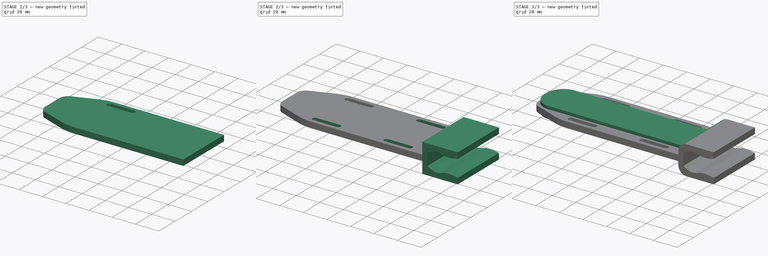
[diagram: build sequence overview — one tinted view per stage of 3, left to right]
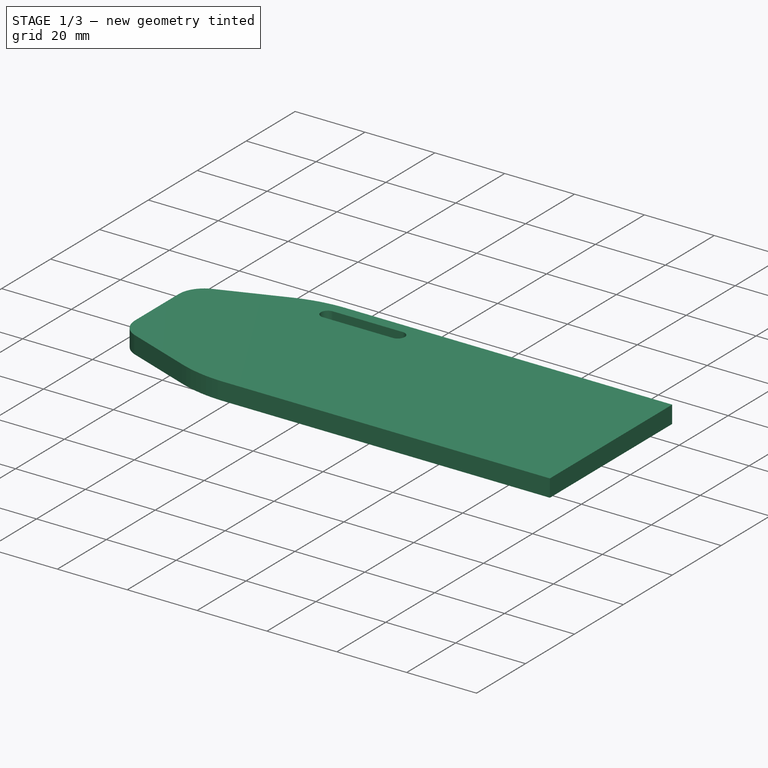
[diagram: stage 1 of 3 — iso view after this stage's code; geometry added in this stage tinted green]
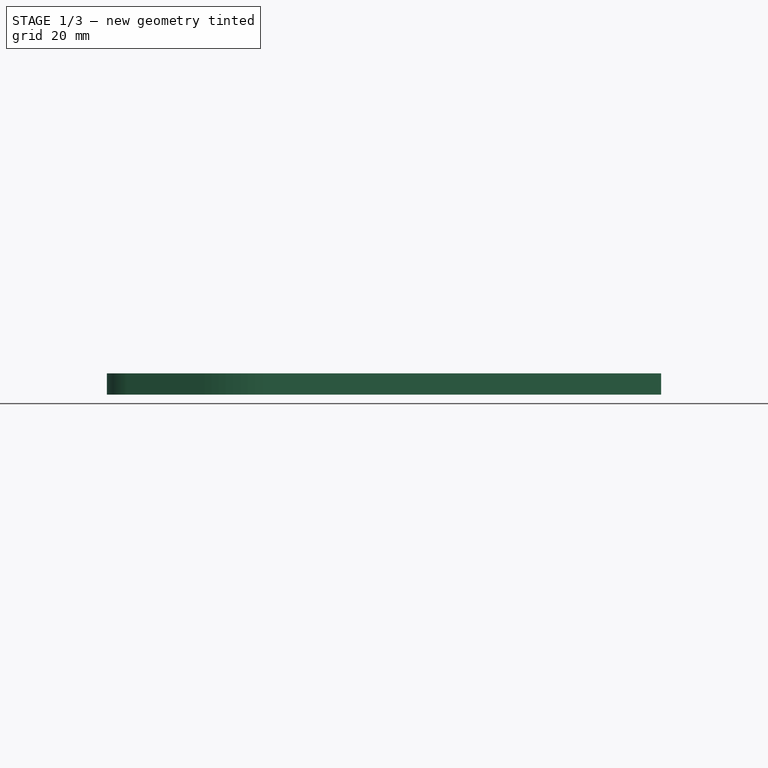
[diagram: stage 1 of 3 — front view after this stage's code; geometry added in this stage tinted green]
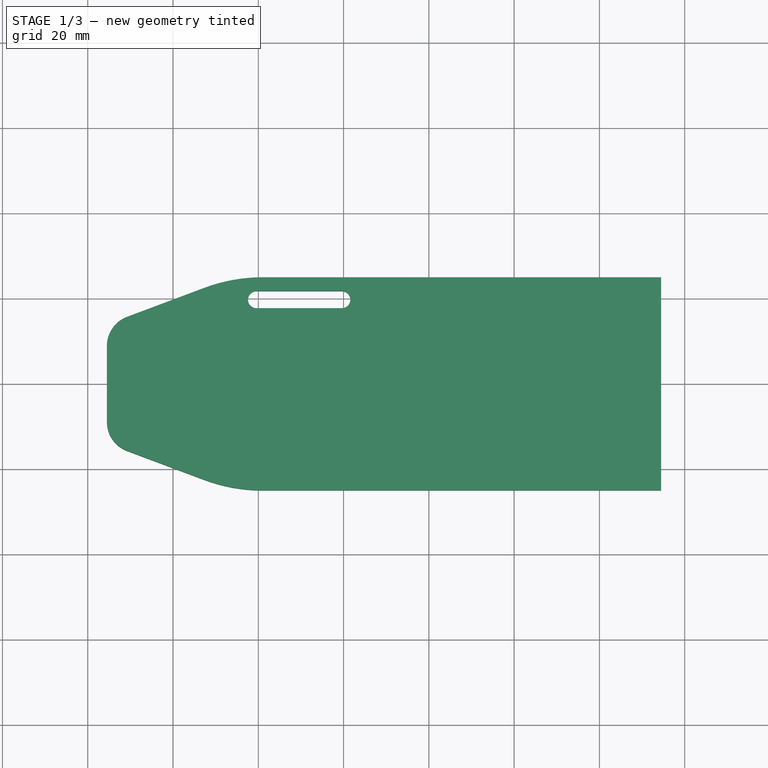
[diagram: stage 1 of 3 — top view after this stage's code; geometry added in this stage tinted green]
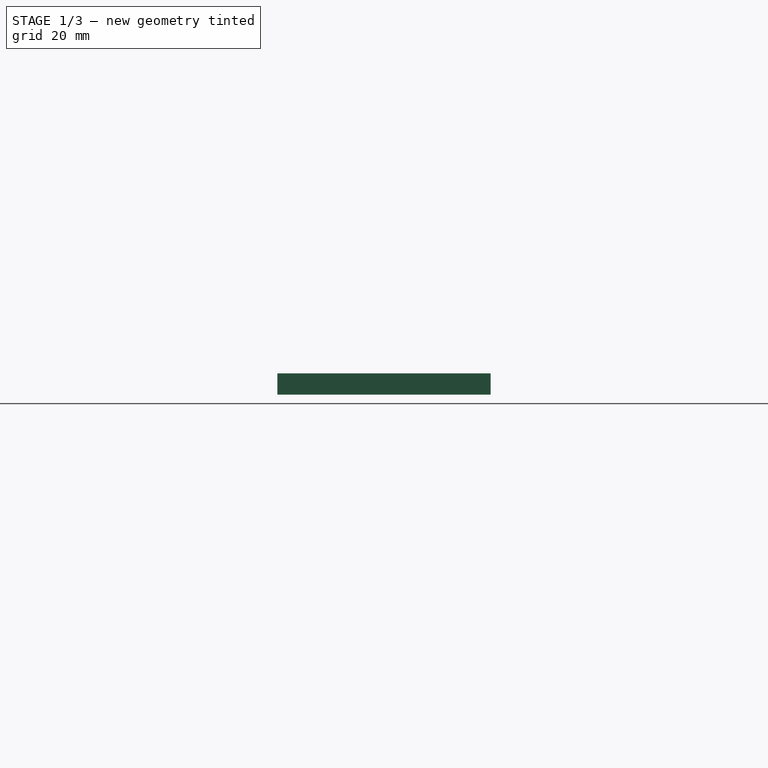
[diagram: stage 1 of 3 — right view after this stage's code; geometry added in this stage tinted green]
FCSTD DOCUMENT  (FreeCAD 0.21R33668 +26 (Git))
Label: Dutka
License: All rights reserved
LicenseURL: http://en.wikipedia.org/wiki/All_rights_reserved
objects: Sketcher::SketchObject×6, PartDesign::Pad×3, PartDesign::Pocket×2, PartDesign::Mirrored×2, PartDesign::MultiTransform×1, PartDesign::Fillet×1, PartDesign::Body×1
note: 22 computed .brp shape members not serialized (recipe doc carries the construction recipe); baked Part::Feature solids carry a one-line shape summary decoded from their .brp

FEATURE [Sketcher::SketchObject] Sketch  label="чохол"
  FullyConstrained = false
  MapMode = 5
  Support = -> [XY_Plane]
  sketch-geometry (14):
    g0: LineSegment StartX=-70.7611 StartY=15.7321 StartZ=0 EndX=-52.6371 EndY=22.5287 EndZ=0
    g1: LineSegment StartX=-39.0087 StartY=25 StartZ=0 EndX=54.4793 EndY=25 EndZ=0
    g2: LineSegment StartX=54.4793 StartY=25 StartZ=0 EndX=54.4793 EndY=-25 EndZ=0
    g3: LineSegment StartX=54.4793 StartY=-25 StartZ=0 EndX=-39.0087 EndY=-25 EndZ=0
    g4: LineSegment StartX=-52.6371 StartY=-22.5287 StartZ=0 EndX=-70.7611 EndY=-15.7321 EndZ=0
    g5: LineSegment StartX=-75.5207 StartY=-8.864 StartZ=0 EndX=-75.5207 EndY=8.864 EndZ=0
    g6: ArcOfCircle CenterX=-39.0087 CenterY=-13.8132 CenterZ=0 NormalX=0 NormalY=0 NormalZ=1 AngleXU=0 Radius=38.8132 StartAngle=1.5708 EndAngle=1.92957
    g7: GeomPoint X=-46.047 Y=25 Z=0
    g8: ArcOfCircle CenterX=-39.0087 CenterY=13.8132 CenterZ=0 NormalX=0 NormalY=0 NormalZ=1 AngleXU=0 Radius=38.8132 StartAngle=4.35361 EndAngle=4.71239
    g9: GeomPoint X=-46.047 Y=-25 Z=0
    g10: ArcOfCircle CenterX=-68.1856 CenterY=8.864 CenterZ=0 NormalX=0 NormalY=0 NormalZ=1 AngleXU=0 Radius=7.33513 StartAngle=1.92957 EndAngle=3.14159
    g11: GeomPoint X=-75.5207 Y=13.9472 Z=0
    g12: ArcOfCircle CenterX=-68.1856 CenterY=-8.864 CenterZ=0 NormalX=0 NormalY=0 NormalZ=1 AngleXU=0 Radius=7.33513 StartAngle=3.14159 EndAngle=4.35361
    g13: GeomPoint X=-75.5207 Y=-13.9472 Z=0
  constraints (26):
    c: Horizontal(g1)
    c: Coincident(g1,g2)
    c: Coincident(g2,g3)
    c: Symmetric(g7,g9,g-1)
    c: Symmetric(g13,g11,g-1)
    c: Symmetric(g1,g2,g-1)
    c: PointOnObject(g7,g0)
    c: PointOnObject(g7,g1)
    c: Tangent(g0,g6) = 1.5708
    c: Tangent(g1,g6) = 1.5708
    c: PointOnObject(g9,g3)
    c: PointOnObject(g9,g4)
    c: Tangent(g3,g8) = 1.5708
    c: Tangent(g4,g8) = 1.5708
    c: Equal(g6,g8)
    c: PointOnObject(g11,g0)
    c: PointOnObject(g11,g5)
    c: Tangent(g0,g10) = 1.5708
    c: Tangent(g5,g10) = 1.5708
    c: PointOnObject(g13,g4)
    c: PointOnObject(g13,g5)
    c: Tangent(g4,g12) = 1.5708
    c: Tangent(g5,g12) = 1.5708
    c: Equal(g10,g12)
    c: DistanceY(g2,g1) = 50
    c: DistanceX(g5,g1) = 130
FEATURE [PartDesign::Pad] Pad
  Direction = (0,0,1)
  Length = 5
  Length2 = 10
  Midplane = true
  Profile = -> Sketch
  ReferenceAxis = -> Sketch [N_Axis]
  Type = 0
FEATURE [Sketcher::SketchObject] Sketch001  label="вирізи"
  FullyConstrained = false
  MapMode = 5
  Placement = pos=(0,0,2.5) rot=(0,0,1;0rad)
  Support = -> [Pad]
  sketch-geometry (4):
    g0: ArcOfCircle CenterX=-40.417 CenterY=19.7548 CenterZ=0 NormalX=0 NormalY=0 NormalZ=1 AngleXU=0 Radius=2 StartAngle=1.5708 EndAngle=4.71239
    g1: ArcOfCircle CenterX=-20.417 CenterY=19.7548 CenterZ=0 NormalX=0 NormalY=0 NormalZ=1 AngleXU=0 Radius=2 StartAngle=4.71239 EndAngle=7.85398
    g2: LineSegment StartX=-40.417 StartY=17.7548 StartZ=0 EndX=-20.417 EndY=17.7548 EndZ=0
    g3: LineSegment StartX=-20.417 StartY=21.7548 StartZ=0 EndX=-40.417 EndY=21.7548 EndZ=0
  constraints (8):
    c: Tangent(g0,g2) = -1.5708
    c: Tangent(g2,g1) = -1.5708
    c: Tangent(g1,g3) = -1.5708
    c: Tangent(g3,g0) = -1.5708
    c: Equal(g0,g1)
    c: Horizontal(g2)
    c: DistanceX(g3,g3) = 20
    c: DistanceY(g1,g1) = 4
FEATURE [PartDesign::Pocket] Pocket
  BaseFeature = -> Pad
  Direction = (0,0,-1)
  Length = 5
  Length2 = 5
  Profile = -> Sketch001
  ReferenceAxis = -> Sketch001 [N_Axis]
  Type = 1
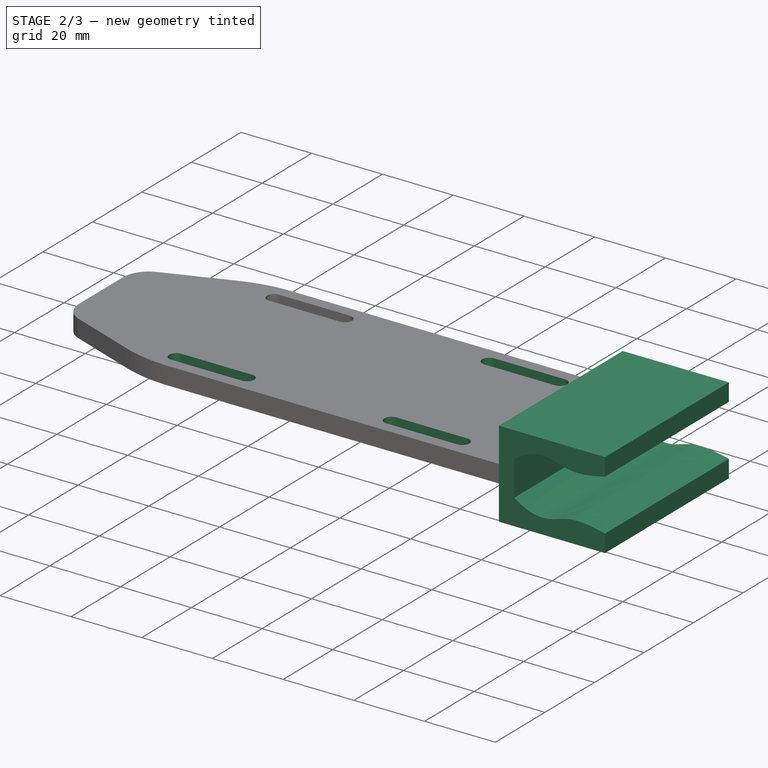
[diagram: stage 2 of 3 — iso view after this stage's code; geometry added in this stage tinted green]
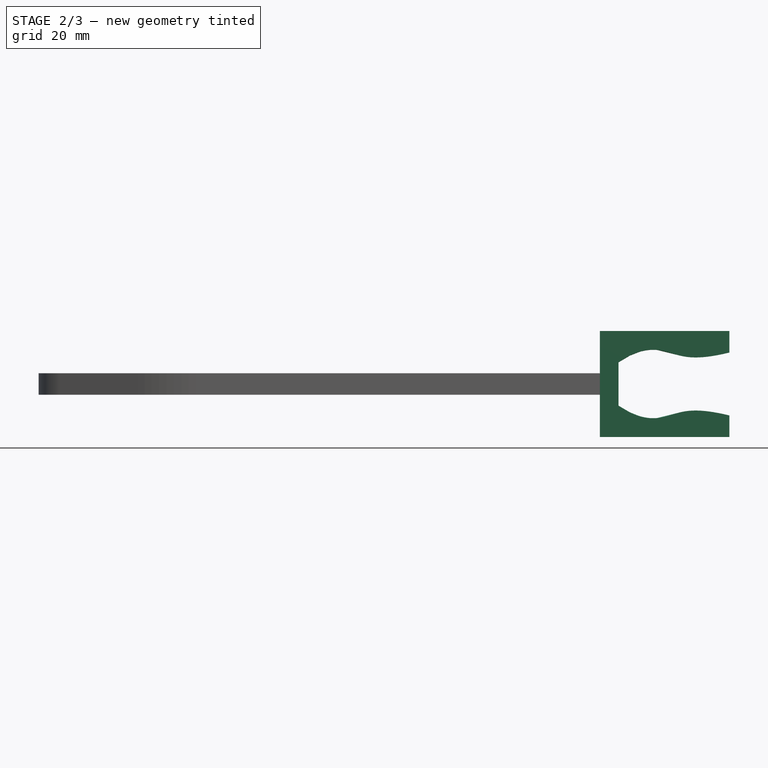
[diagram: stage 2 of 3 — front view after this stage's code; geometry added in this stage tinted green]
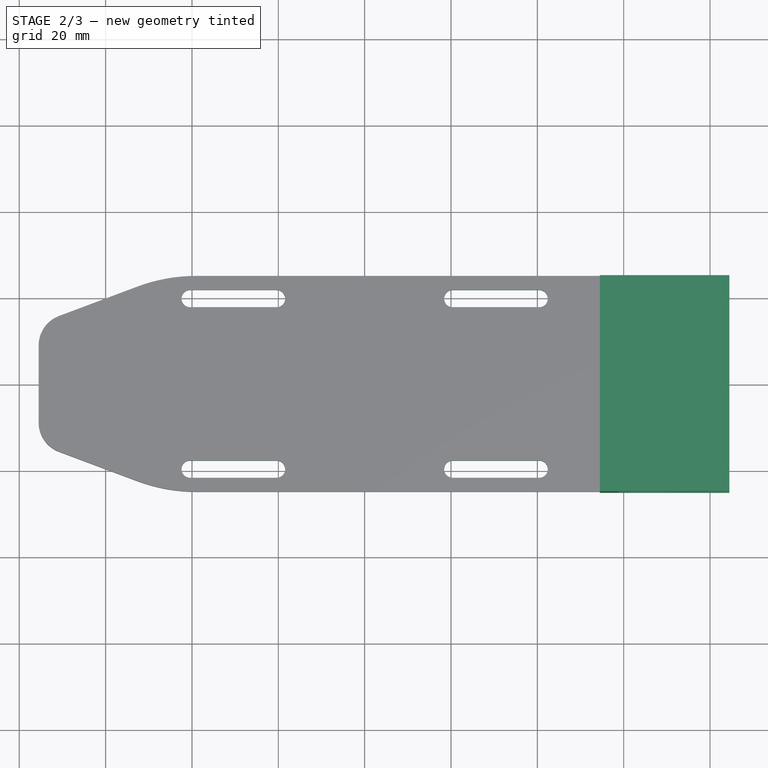
[diagram: stage 2 of 3 — top view after this stage's code; geometry added in this stage tinted green]
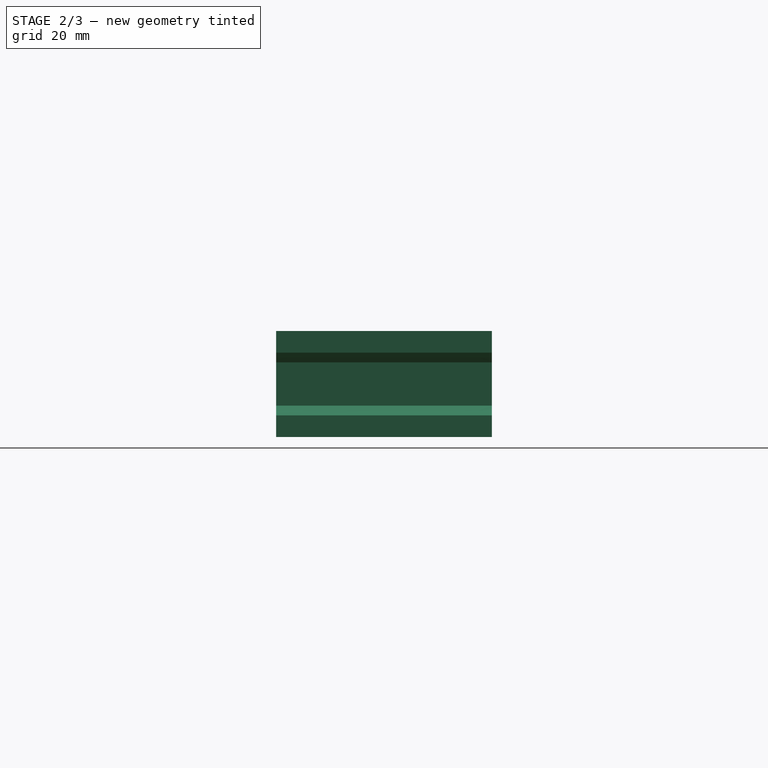
[diagram: stage 2 of 3 — right view after this stage's code; geometry added in this stage tinted green]
FEATURE [PartDesign::Mirrored] Mirrored
  MirrorPlane = -> Sketch001 [V_Axis]
FEATURE [PartDesign::Mirrored] Mirrored001
  MirrorPlane = -> XZ_Plane
FEATURE [PartDesign::MultiTransform] MultiTransform
  BaseFeature = -> Pocket
  Originals = -> [Pocket]
  Transformations = -> [Mirrored,Mirrored001]
FEATURE [Sketcher::SketchObject] Sketch002
  FullyConstrained = true
  MapMode = 5
  Placement = pos=(54.4793,-7.7e-15,0) rot=(0.57735,0.57735,0.57735;2.0944rad)
  Support = -> [MultiTransform]
FEATURE [Sketcher::SketchObject] Sketch003  label="Защелка"
  ExternalGeometry = -> [MultiTransform]
  FullyConstrained = false
  MapMode = 5
  Placement = pos=(54.4793,-7.7e-15,0) rot=(0.57735,0.57735,0.57735;2.0944rad)
  Support = -> [MultiTransform]
  sketch-geometry (5):
    g0: LineSegment StartX=-25 StartY=12.2655 StartZ=0 EndX=-25 EndY=-12.2655 EndZ=0
    g1: LineSegment StartX=-25 StartY=-12.2655 StartZ=0 EndX=25 EndY=-12.2655 EndZ=0
    g2: LineSegment StartX=25 StartY=-12.2655 StartZ=0 EndX=25 EndY=12.2655 EndZ=0
    g3: LineSegment StartX=25 StartY=12.2655 StartZ=0 EndX=-25 EndY=12.2655 EndZ=0
    g4: GeomPoint X=0 Y=0 Z=0
  constraints (10):
    c: Coincident(g0,g1)
    c: Coincident(g1,g2)
    c: Coincident(g2,g3)
    c: Coincident(g3,g0)
    c: Horizontal(g1)
    c: Horizontal(g3)
    c: Vertical(g0)
    c: Vertical(g2)
    c: Symmetric(g1,g0,g4)
    c: Coincident(g4,g-1)
FEATURE [PartDesign::Pad] Pad001
  BaseFeature = -> MultiTransform
  Direction = (1,-1e-16,-1e-16)
  Length = 30
  Length2 = 10
  Profile = -> Sketch003
  ReferenceAxis = -> Sketch003 [N_Axis]
  Type = 0
FEATURE [Sketcher::SketchObject] Sketch004  label="виріз в защелці"
  ExternalGeometry = -> [Pad001]
  FullyConstrained = false
  MapMode = 5
  Placement = pos=(2.8e-15,25,2.8e-15) rot=(0,0.707107,0.707107;3.14159rad)
  Support = -> [Pad001]
  sketch-geometry (20):
    g0-g4: Circle x5 (B-spline internal-alignment scaffolding for g5; pole/knot coordinates omitted)
    g5: BSplineCurve PolesCount=5 KnotsCount=3 Degree=3 IsPeriodic=0
    g6: GeomPoint X=-84.4793 Y=7.27918 Z=0
    g7: GeomPoint X=-70.5594 Y=7.29659 Z=0
    g8: GeomPoint X=-58.7932 Y=5 Z=0
    g9: LineSegment StartX=-58.7932 StartY=5 StartZ=0 EndX=-58.7932 EndY=-5 EndZ=0
    g10: LineSegment StartX=-84.4793 StartY=7.27918 StartZ=0 EndX=-84.4793 EndY=-7.27918 EndZ=0
    g11-g15: Circle x5 (B-spline internal-alignment scaffolding for g16; pole/knot coordinates omitted)
    g16: BSplineCurve PolesCount=5 KnotsCount=3 Degree=3 IsPeriodic=0
    g17: GeomPoint X=-84.4793 Y=-7.27918 Z=0
    g18: GeomPoint X=-70.5594 Y=-7.29659 Z=0
    g19: GeomPoint X=-58.7932 Y=-5 Z=0
  constraints (22):
    c: Weight(g0) = 1
    c: PointOnObject(g5,g-3)
    c: Equal(g0, g1-g4) x4
    c: InternalAlignment(g0-g4 -> g5) x5
    c: InternalAlignment(g6,g5)
    c: InternalAlignment(g7,g5)
    c: InternalAlignment(g8,g5)
    c: Coincident(g9,g5)
    c: Coincident(g10,g5)
    c: Weight(g11) = 1
    c: Coincident(g16,g10)
    c: Equal(g11, g12-g15) x4
    c: Coincident(g16,g9)
    c: InternalAlignment(g11-g15 -> g16) x5
    c: InternalAlignment(g17,g16)
    c: InternalAlignment(g18,g16)
    c: InternalAlignment(g19,g16)
    c: Symmetric(g1,g12,g-1)
    c: Symmetric(g2,g13,g-1)
    c: Symmetric(g3,g14,g-1)
    c: Symmetric(g5,g9,g-1)
    c: Symmetric(g5,g10,g-1)
FEATURE [PartDesign::Pocket] Pocket001
  BaseFeature = -> Pad001
  Direction = (-1e-16,-1,-2e-16)
  Length = 5
  Length2 = 5
  Profile = -> Sketch004
  ReferenceAxis = -> Sketch004 [N_Axis]
  Type = 1
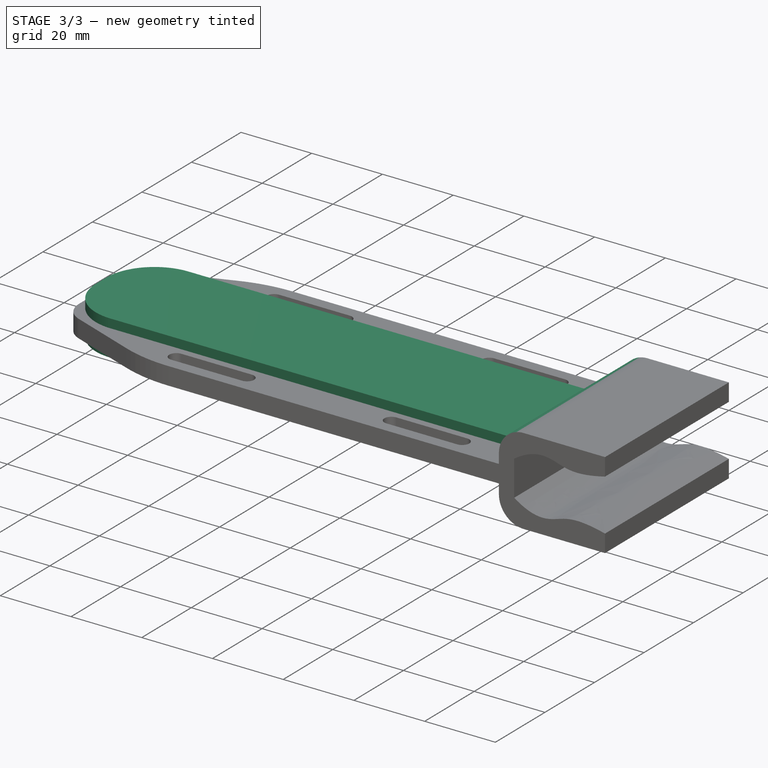
[diagram: stage 3 of 3 — iso view after this stage's code; geometry added in this stage tinted green]
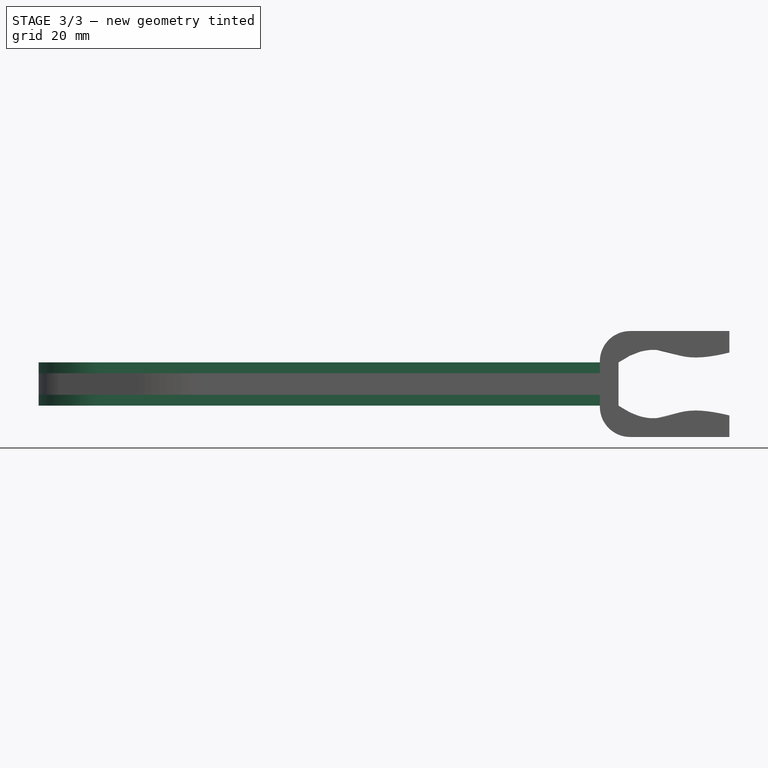
[diagram: stage 3 of 3 — front view after this stage's code; geometry added in this stage tinted green]
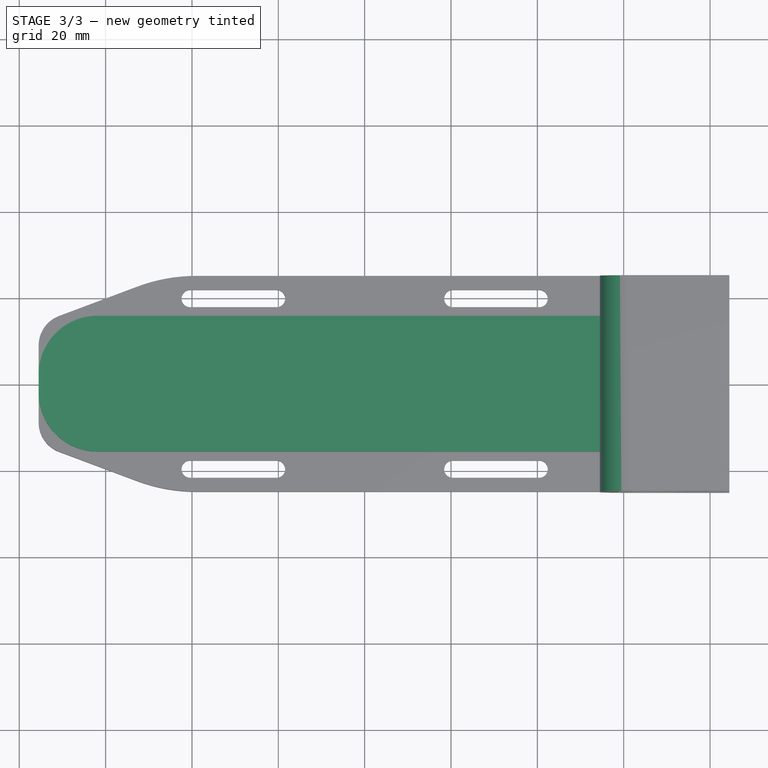
[diagram: stage 3 of 3 — top view after this stage's code; geometry added in this stage tinted green]
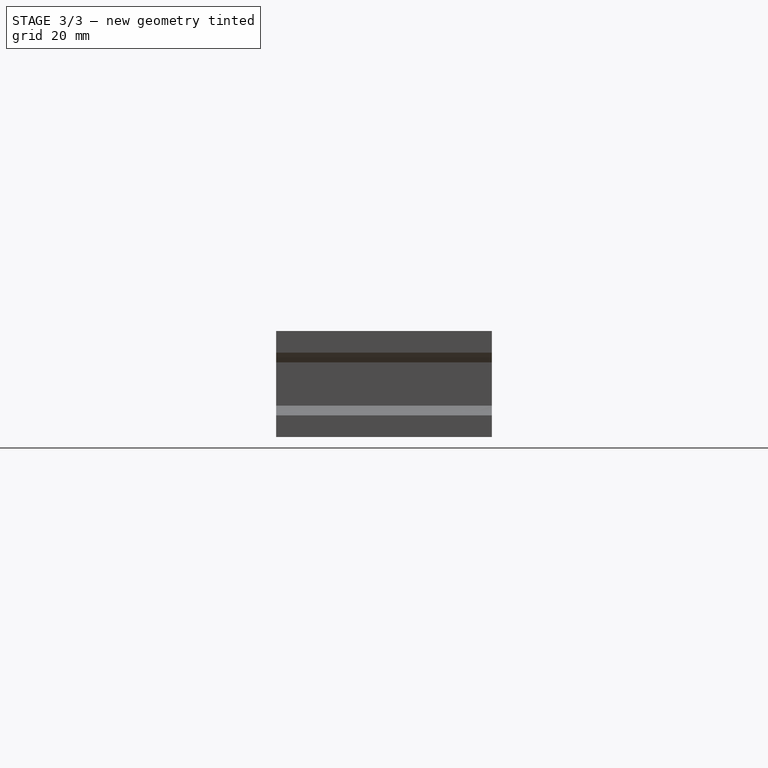
[diagram: stage 3 of 3 — right view after this stage's code; geometry added in this stage tinted green]
FEATURE [PartDesign::Fillet] Fillet
  Base = -> Pocket001 [Edge19,Edge11]
  BaseFeature = -> Pocket001
  Radius = 7
  SupportTransform = false
  UseAllEdges = false
FEATURE [Sketcher::SketchObject] Sketch005
  ExternalGeometry = -> [Fillet]
  FullyConstrained = false
  MapMode = 5
  Support = -> [XY_Plane]
  sketch-geometry (6):
    g0: LineSegment StartX=-61.8943 StartY=15.7321 StartZ=0 EndX=54.4793 EndY=15.7321 EndZ=0
    g1: LineSegment StartX=54.4793 StartY=15.7321 StartZ=0 EndX=54.4793 EndY=-15.7321 EndZ=0
    g2: LineSegment StartX=54.4793 StartY=-15.7321 StartZ=0 EndX=-61.8943 EndY=-15.7321 EndZ=0
    g3: LineSegment StartX=-75.5207 StartY=-2.1057 StartZ=0 EndX=-75.5207 EndY=2.1057 EndZ=0
    g4: ArcOfCircle CenterX=-61.8943 CenterY=2.1057 CenterZ=0 NormalX=0 NormalY=0 NormalZ=1 AngleXU=0 Radius=13.6264 StartAngle=1.5708 EndAngle=3.14159
    g5: ArcOfCircle CenterX=-61.8943 CenterY=-2.1057 CenterZ=0 NormalX=0 NormalY=0 NormalZ=1 AngleXU=0 Radius=13.6264 StartAngle=3.14159 EndAngle=4.71239
  constraints (14):
    c: Coincident(g0,g1)
    c: Coincident(g1,g2)
    c: Horizontal(g0)
    c: Horizontal(g2)
    c: Vertical(g1)
    c: Vertical(g3)
    c: PointOnObject(g1,g-3)
    c: PointOnObject(g-5,g3)
    c: PointOnObject(g-5,g0)
    c: Tangent(g0,g4) = 1.5708
    c: Tangent(g3,g4) = 1.5708
    c: Tangent(g2,g5) = 1.5708
    c: Tangent(g3,g5) = 1.5708
    c: Symmetric(g4,g5,g-1)
FEATURE [PartDesign::Pad] Pad002
  BaseFeature = -> Fillet
  Direction = (0,0,1)
  Length = 10
  Length2 = 10
  Midplane = true
  Profile = -> Sketch005
  ReferenceAxis = -> Sketch005 [N_Axis]
  Type = 0
FEATURE [PartDesign::Body] Body  label="Тело"
  Group = -> [Sketch,Pad,Sketch001,Pocket,MultiTransform,Mirrored,Mirrored001,Sketch002,Sketch003,Pad001,Sketch004,Pocket001,Fillet,Sketch005,Pad002]
  Origin = -> Origin
  Tip = -> Pad002
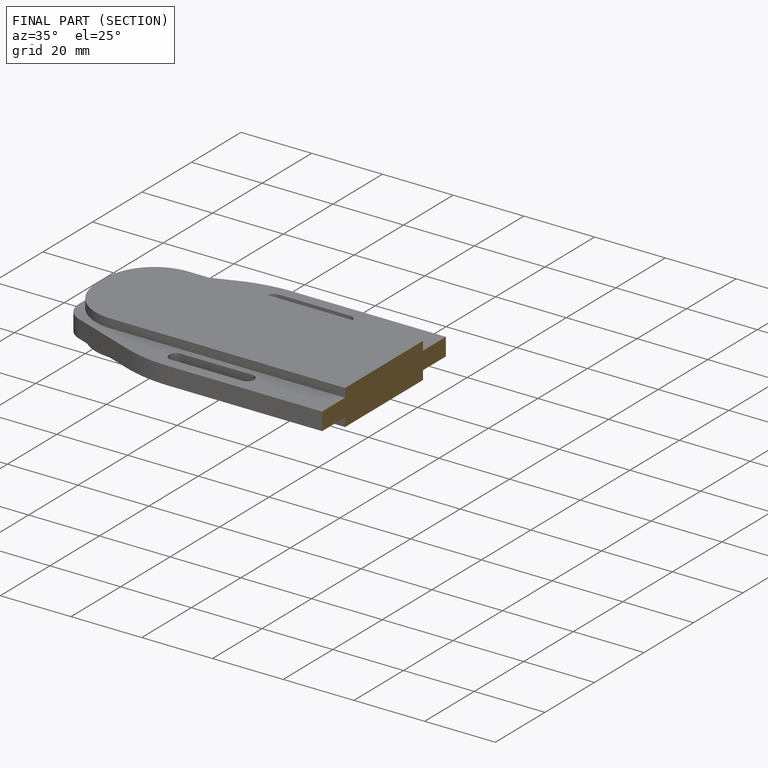
[diagram: finished part — half-section view (interior)]
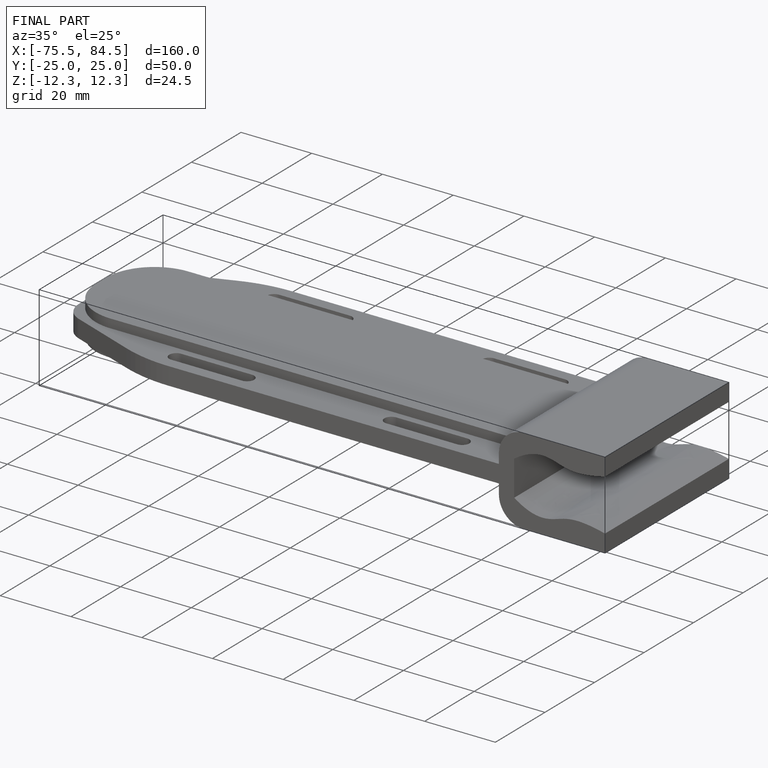
[diagram: finished part — iso view with bounding-box wireframe]
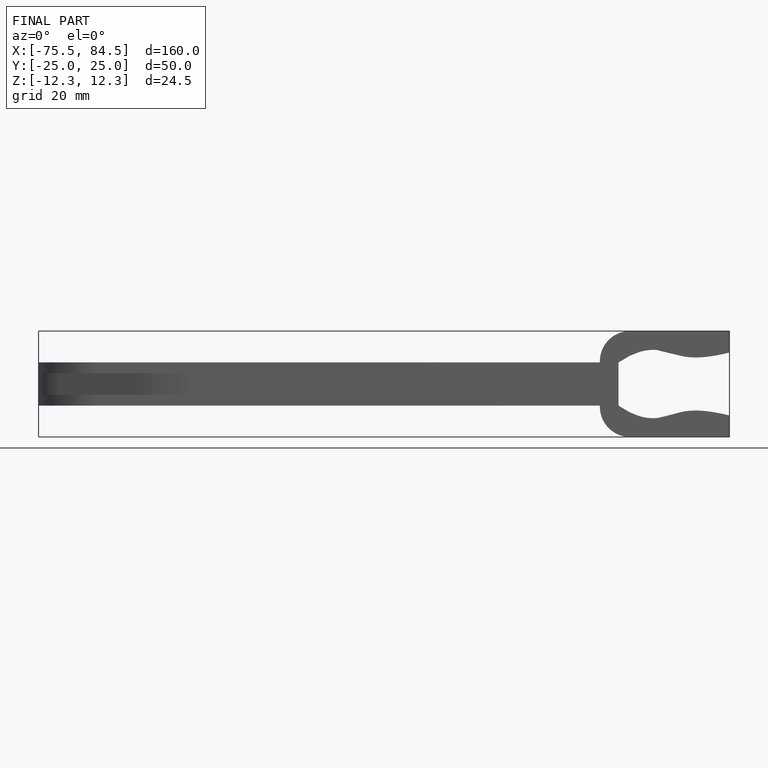
[diagram: finished part — front view with bounding-box wireframe]
